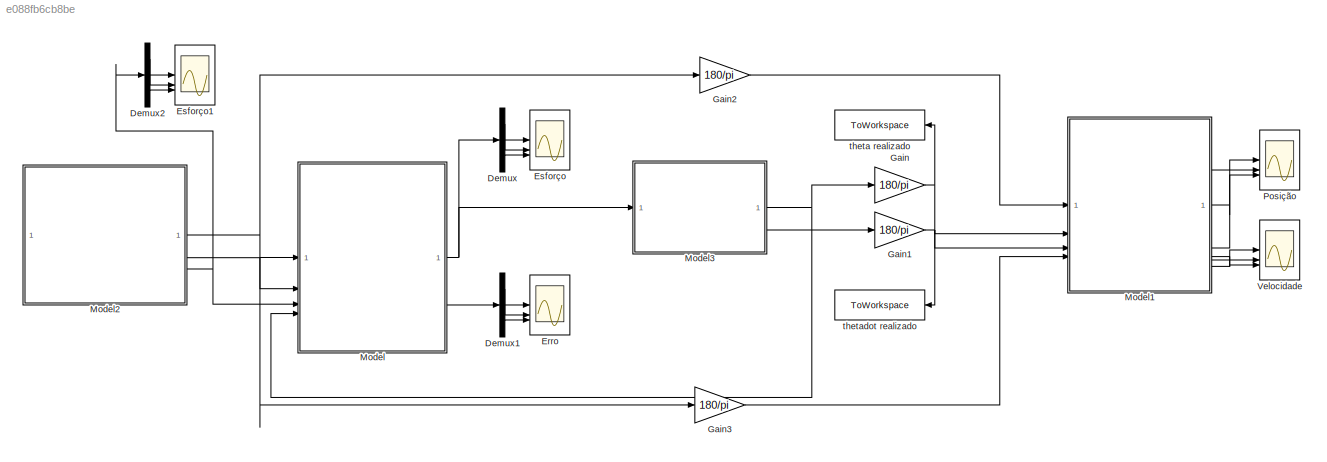
MODEL slx_e088fb6cb8be
KIND model
CONFIG AbsTol = auto
CONFIG EnableMultiTasking = off
CONFIG FixedStep = auto
CONFIG MaxStep = auto
CONFIG MinStep = auto
CONFIG RelTol = 1e-3
CONFIG SampleTimeConstraint = Unconstrained
CONFIG SolverName = VariableStepAuto
CONFIG StartTime = 0.0
CONFIG StopTime = 10
BLOCK [Demux] Demux
  Outputs = 3
BLOCK [Demux] Demux1
  Outputs = 3
BLOCK [Demux] Demux2
  Outputs = 3
BLOCK [Scope] Erro
  Floating = off
  NumInputPorts = 3
  ScopeSpecificationString = Simulink.scopes.TimeScopeBlockCfg('CurrentConfiguration', extmgr.ConfigurationSet(extmgr.Configuration('Core','General UI',true),extmgr.Configuration('Core','Source UI',true),extmgr.Configuration('Sources','WiredSimulink',true,'DataLoggingVariableName','ScopeData1'),extmgr.Configuration('Visuals','Time Domain',true,'SerializedDisplays',{struct('MinYLimReal','-2.29741','MaxYLimReal','1.47808','YLab...<+1422ch>
BLOCK [Scope] Esforço
  Floating = off
  NumInputPorts = 3
  ScopeSpecificationString = Simulink.scopes.TimeScopeBlockCfg('CurrentConfiguration', extmgr.ConfigurationSet(extmgr.Configuration('Core','General UI',true),extmgr.Configuration('Core','Source UI',true),extmgr.Configuration('Sources','WiredSimulink',true),extmgr.Configuration('Visuals','Time Domain',true,'SerializedDisplays',{struct('MinYLimReal','-8.59029','MaxYLimReal','5.3178','YLabelReal','','MinYLimMag','0.00000','MaxYL...<+1404ch>
BLOCK [Scope] Esforço1
  Floating = off
  NumInputPorts = 3
  ScopeSpecificationString = Simulink.scopes.TimeScopeBlockCfg('CurrentConfiguration', extmgr.ConfigurationSet(extmgr.Configuration('Core','General UI',true),extmgr.Configuration('Core','Source UI',true),extmgr.Configuration('Sources','WiredSimulink',true,'DataLoggingVariableName','ScopeData1'),extmgr.Configuration('Visuals','Time Domain',true,'SerializedDisplays',{struct('MinYLimReal','-1.00000','MaxYLimReal','1.00000','YLab...<+1447ch>
BLOCK [Gain] Gain
  Gain = 180/pi
BLOCK [Gain] Gain1
  Gain = 180/pi
BLOCK [Gain] Gain2
  Gain = 180/pi
BLOCK [Gain] Gain3
  Gain = 180/pi
BLOCK [ModelReference] Model
  ModelNameDialog = compensadorFeedforward.slx
  ModelReferenceVersion = 1.6
BLOCK [ModelReference] Model1
  ModelNameDialog = routing.slx
  ModelReferenceVersion = 1.1
BLOCK [ModelReference] Model2
  ModelNameDialog = trajetoria.slx
  ModelReferenceVersion = 2.0
BLOCK [ModelReference] Model3
  ModelNameDialog = dinamicaDoRoboLista3.slx
  ModelReferenceVersion = 1.7
BLOCK [Scope] Posição
  Floating = off
  NumInputPorts = 3
  ScopeSpecificationString = Simulink.scopes.TimeScopeBlockCfg('CurrentConfiguration', extmgr.ConfigurationSet(extmgr.Configuration('Core','General UI',true),extmgr.Configuration('Core','Source UI',true),extmgr.Configuration('Sources','WiredSimulink',true,'DataLoggingVariableName','ScopeData2'),extmgr.Configuration('Visuals','Time Domain',true,'SerializedDisplays',{struct('MinYLimReal','-134.30577','MaxYLimReal','78.19422','Y...<+1503ch>
BLOCK [Scope] Velocidade
  Floating = off
  NumInputPorts = 3
  ScopeSpecificationString = Simulink.scopes.TimeScopeBlockCfg('CurrentConfiguration', extmgr.ConfigurationSet(extmgr.Configuration('Core','General UI',true),extmgr.Configuration('Core','Source UI',true),extmgr.Configuration('Sources','WiredSimulink',true,'DataLoggingVariableName','ScopeData3'),extmgr.Configuration('Visuals','Time Domain',true,'SerializedDisplays',{struct('MinYLimReal','-258.77634','MaxYLimReal','156.58048','...<+1483ch>
BLOCK [ToWorkspace] theta realizado
  FixptAsFi = on
  MaxDataPoints = inf
  NameLocation = top
  SampleTime = -1
  SaveFormat = Timeseries
  VariableName = thetar
BLOCK [ToWorkspace] thetadot realizado
  FixptAsFi = on
  MaxDataPoints = inf
  NameLocation = top
  SampleTime = -1
  SaveFormat = Timeseries
  VariableName = thetadotr
LINE Demux1:1 -> Erro:1
LINE Demux1:2 -> Erro:2
LINE Demux1:3 -> Erro:3
LINE Demux2:1 -> Esforço1:1
LINE Demux2:2 -> Esforço1:2
LINE Demux2:3 -> Esforço1:3
LINE Demux:1 -> Esforço:1
LINE Demux:2 -> Esforço:2
LINE Demux:3 -> Esforço:3
NET Gain1:1 -> Model1:3, thetadot realizado:1
LINE Gain2:1 -> Model1:1
LINE Gain3:1 -> Model1:4
NET Gain:1 -> Model1:2, theta realizado:1
LINE Model1:1 -> Posição:1
LINE Model1:2 -> Posição:2
LINE Model1:3 -> Posição:3
LINE Model1:4 -> Velocidade:1
LINE Model1:5 -> Velocidade:2
LINE Model1:6 -> Velocidade:3
NET Model2:1 -> Gain2:1, Model:1
NET Model2:2 -> Gain3:1, Model:2
NET Model2:3 -> Demux2:1, Model:3
NET Model3:1 -> Gain:1, Model:4
LINE Model3:2 -> Gain1:1
NET Model:1 -> Demux:1, Model3:1
LINE Model:2 -> Demux1:1
note: NET lines group one-source signal fan-out (src -> all destinations, sorted); 1:1 wires keep LINE
